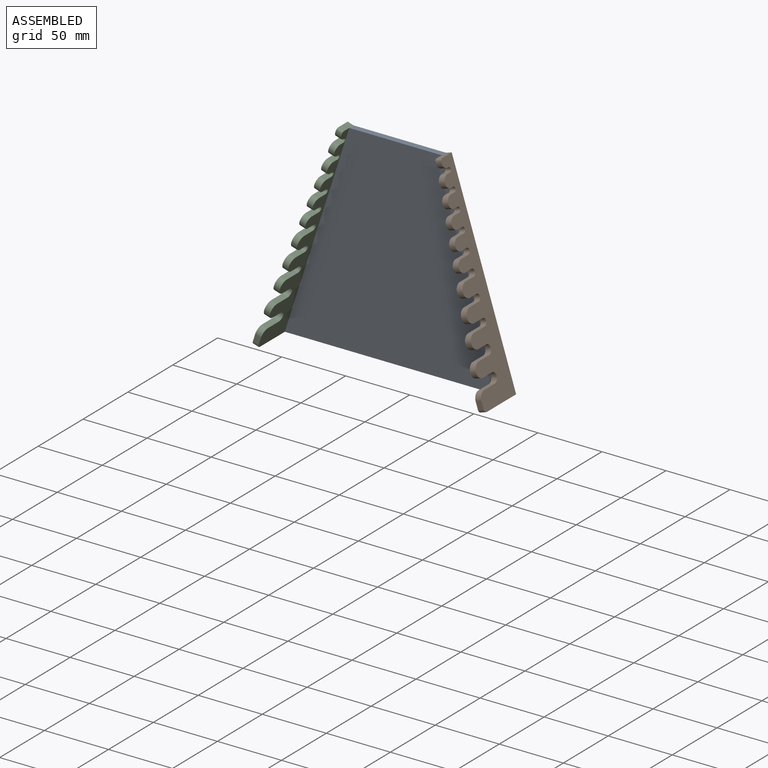
[diagram: assembled view]
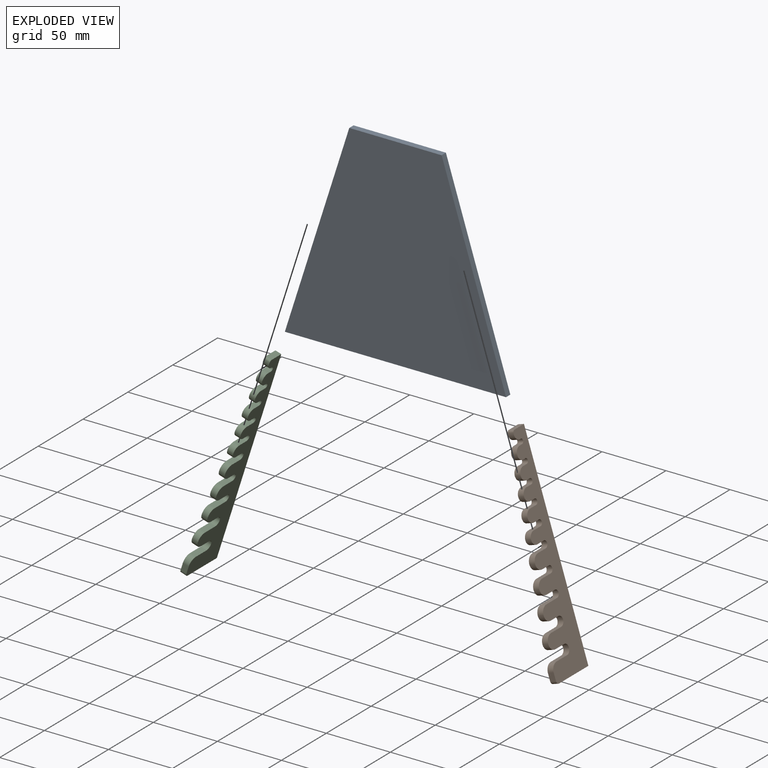
[diagram: exploded view]
GUIDED TOUR — MATED ASSEMBLY (Onshape document 867da534c3318d1e478ffcb7, AutoMate assembly 867da534c3318d1e478ffcb7_2a25a77cb489d93749399618_07b27a0c460248b350188c8e_default)

This assembly has 3 components, labeled P0..P2 below (a component is one placed occurrence of a part; the same part can appear more than once), held together by 2 mates. A mate is a constraint between two components; its type names the relative motion it leaves free:
  FASTENED — locks the two components together rigidly (no relative motion).
Axis/direction vectors are unit vectors and 'through' points are millimeter coordinates, both in the assembly's world frame.

MATES
  1. FASTENED "Fastened 1": P0 <-> P2, direction (-0.305, 0.000, -0.952) through (-73.37, 70.63, -25.66) mm
  2. FASTENED "Fastened 2": P1 <-> P0, direction (0.305, 0.000, -0.952) through (49.03, 70.63, -25.66) mm

ASSEMBLY ORDER
  1. P0 — the base component [order verified]
  2. P2 [order verified]
  3. P1 [order verified]
Order-tag legend:
  [order verified] — this step's position reverses a verified removal order: the component was checked to insert without passing through the ones already placed.

Of the 3 components, 3 carry the full construction recipe — the FeatureScript program that regenerates the part's solid from scratch; the rest are supplied as boundary geometry only.
Each toured component is shown spotlighted twice — in the assembled view, then in the exploded view, where a leader line traces a displaced component back to its assembled socket (saturated green if recipe-attached, orange if geometry-only; every other component desaturated gray) — followed by its recipe or geometry summary and the mates that hold it.
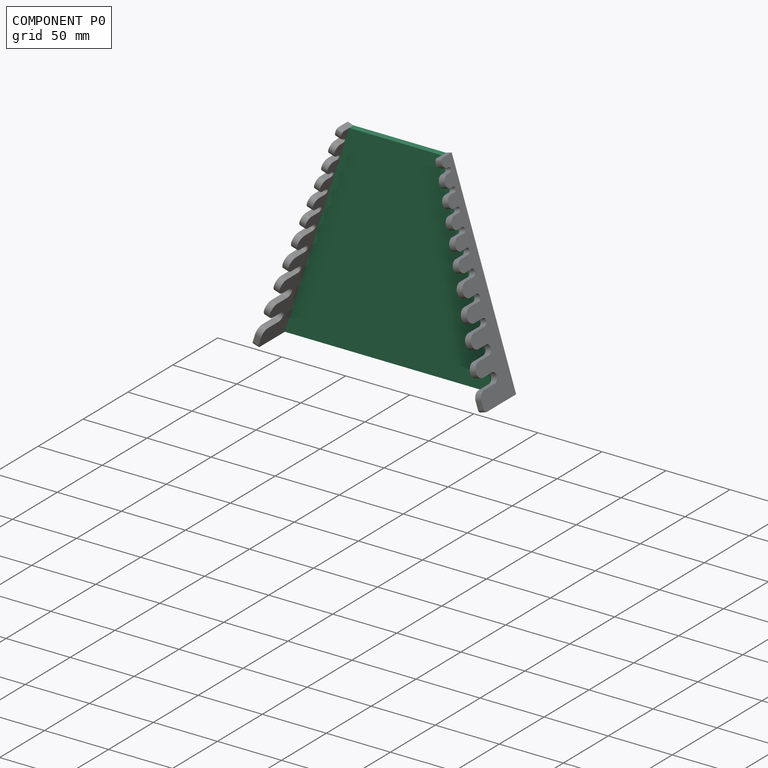
[diagram: component P0 — assembled]
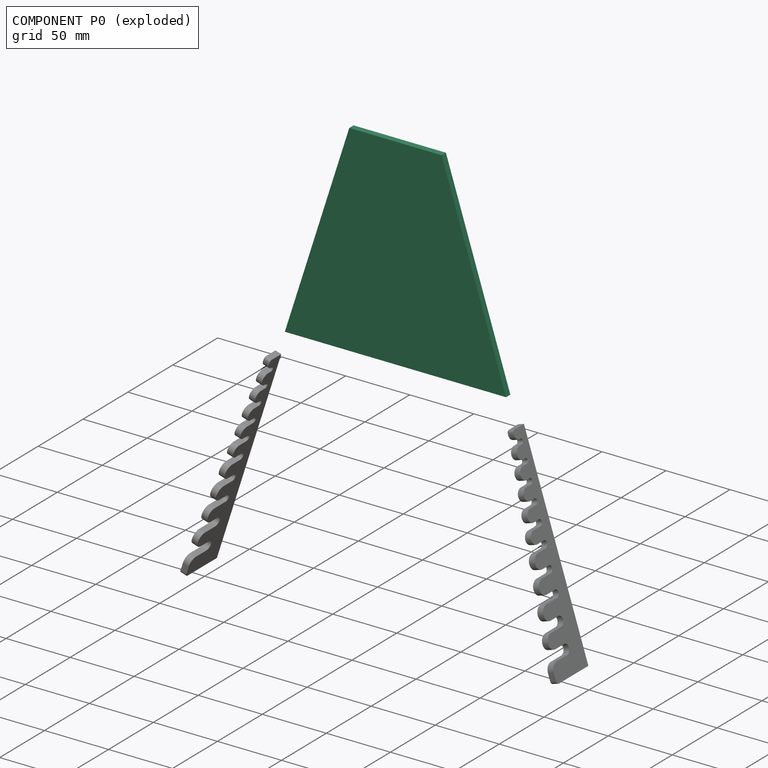
[diagram: component P0 — exploded]
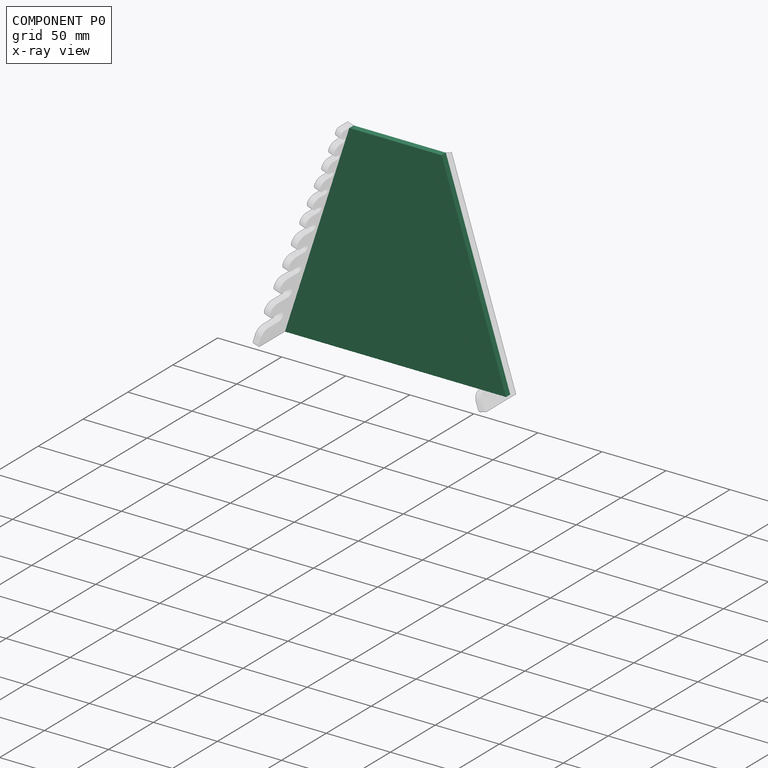
[diagram: component P0 — x-ray view]
COMPONENT P0 — recipe-attached (CADFS 00325314, mesh-verified: the recipe's output STEP matches this component's geometry to below the mesh-comparison resolution (tessellation chordal tolerance ~0.35 mm)).
Held by: FASTENED mate "Fastened 1" to P2; FASTENED mate "Fastened 2" to P1.
Construction recipe (FeatureScript — the CAD program that rebuilds this solid; sketch coordinates are in the units given by the * unit suffixes, e.g. mm):

FeatureScript 1511;
import(path : "onshape/std/geometry.fs", version : "1511.0");
import(path : "onshape/std/common.fs", version : "1511.0");
const mm = millimeter;
const VERTEX = EntityType.VERTEX;
const EDGE = EntityType.EDGE;
const FACE = EntityType.FACE;
const BODY = EntityType.BODY;
function v(x, y){return vector(x, y);}
function OD(order){return orderDisambiguation(order);}
function OSD(set){return originalSetDisambiguation(set);}
function TD(topology){return topologyDisambiguation(topology);}
function TDD(query){return trueDependencyDisambiguation(query);}
function sQuery(a, b, c) {return sketchEntityQuery(a, b, c);}

annotation { "Feature Type Name" : "Feature", "Feature Type Description" : "" }
export const myFeature = defineFeature(function(context is Context, id is Id, definition is map)
    precondition{}
    {
        {
            var Q0;
            Q0=qCreatedBy(makeId("Front.planeOp"),FACE);
            var sketch = newSketch(context, id + "F0", { "sketchPlane" : qUnion([Q0])});
            skLineSegment(sketch, "E0", {"start": v(0, 0) * mm, "end": v(172.68, 0) * mm});
            skLineSegment(sketch, "E1", {"start": v(172.68, 0) * mm, "end": v(122.4, 157.26) * mm});
            skLineSegment(sketch, "E2", {"start": v(122.4, 157.26) * mm, "end": v(50.28, 157.26) * mm});
            skLineSegment(sketch, "E3", {"start": v(50.28, 157.26) * mm, "end": v(0, 0) * mm});
            skLineSegment(sketch, "E4", {"start": v(86.34, 0) * mm, "end": v(86.34, 157.26) * mm, "construction": true});
            skLineSegment(sketch, "E5", {"start": v(5.38, 16.81) * mm, "end": v(167.3, 16.81) * mm, "construction": true});
            skLineSegment(sketch, "E6", {"start": v(41.89, 131) * mm, "end": v(130.79, 131) * mm, "construction": true});
            skSolve(sketch);
        }
        {
            var Q0;
            Q0 = qSketchRegion(id + "F0", true);
            extrude(context, id + "F1", {"entities" : qUnion([Q0]), "depth" : 4.76 * mm});
        }
    });
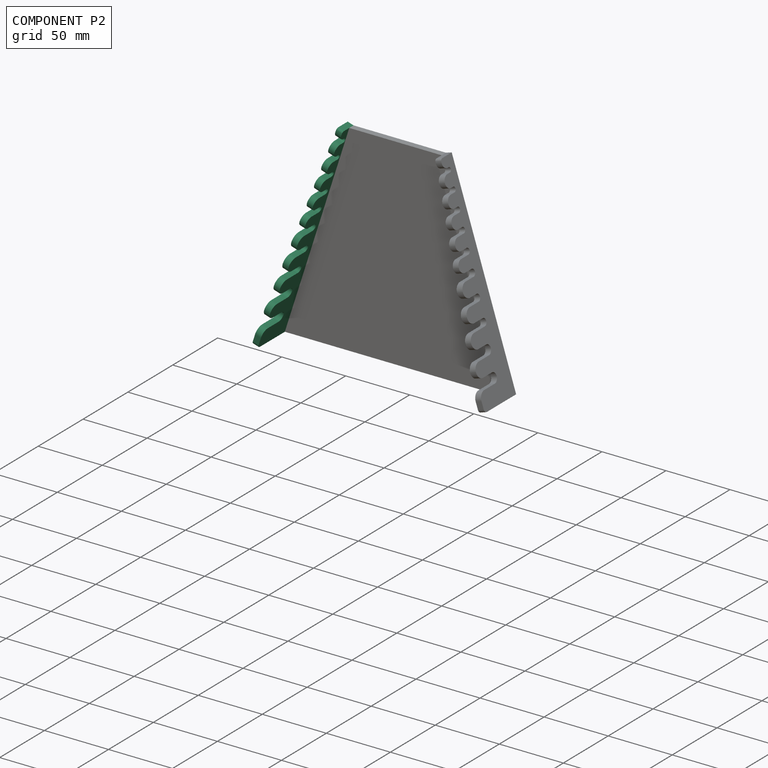
[diagram: component P2 — assembled]
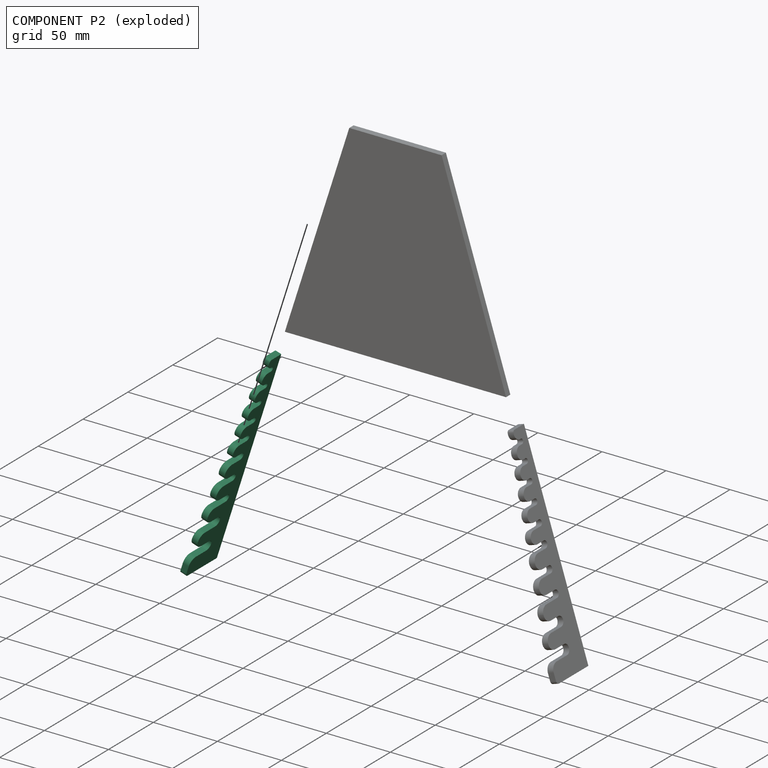
[diagram: component P2 — exploded]
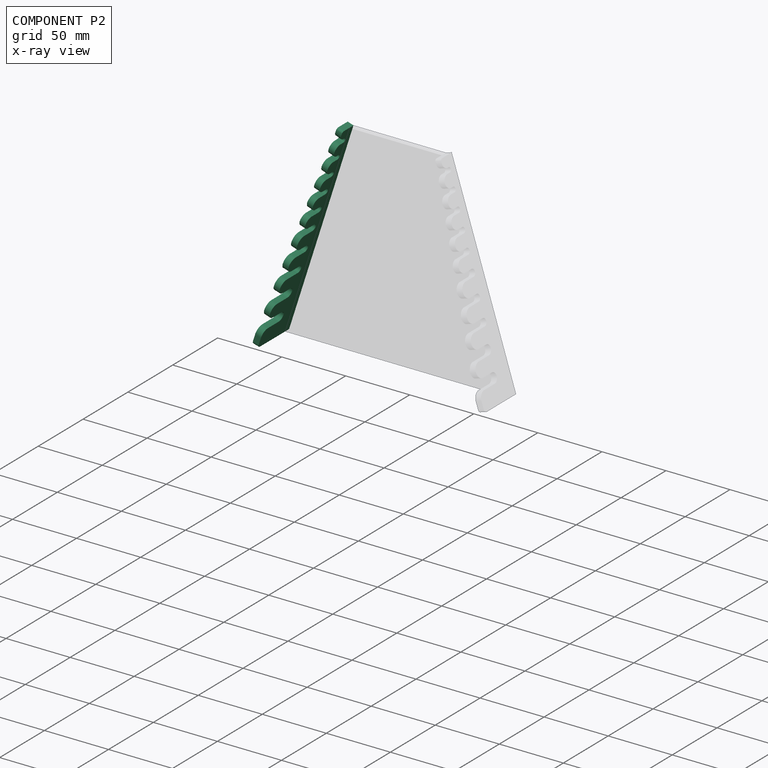
[diagram: component P2 — x-ray view]
COMPONENT P2 — same part as P1 (CADFS 00325313); its construction recipe is shown at P1.
Held by: FASTENED mate "Fastened 1" to P0.
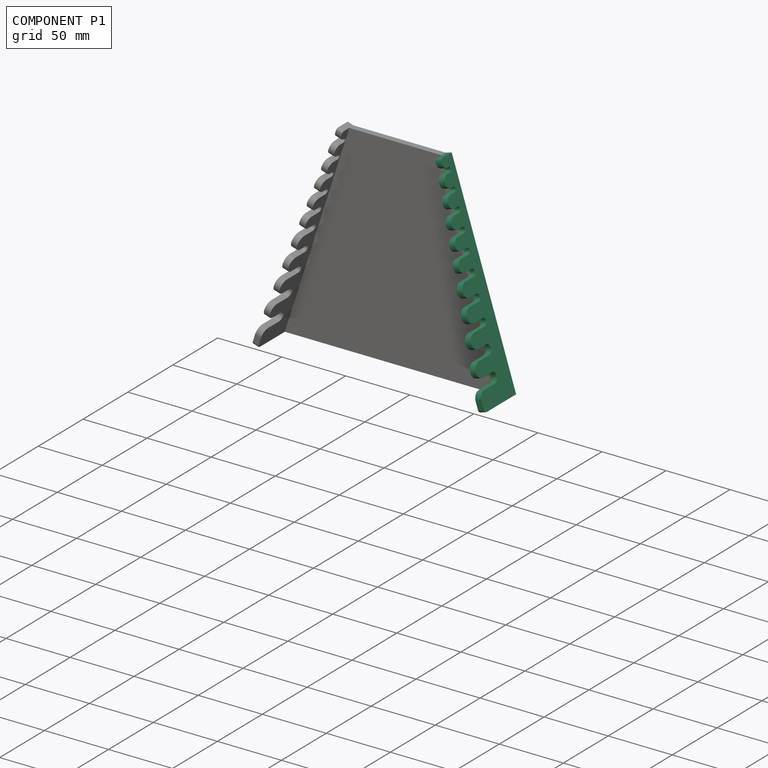
[diagram: component P1 — assembled]
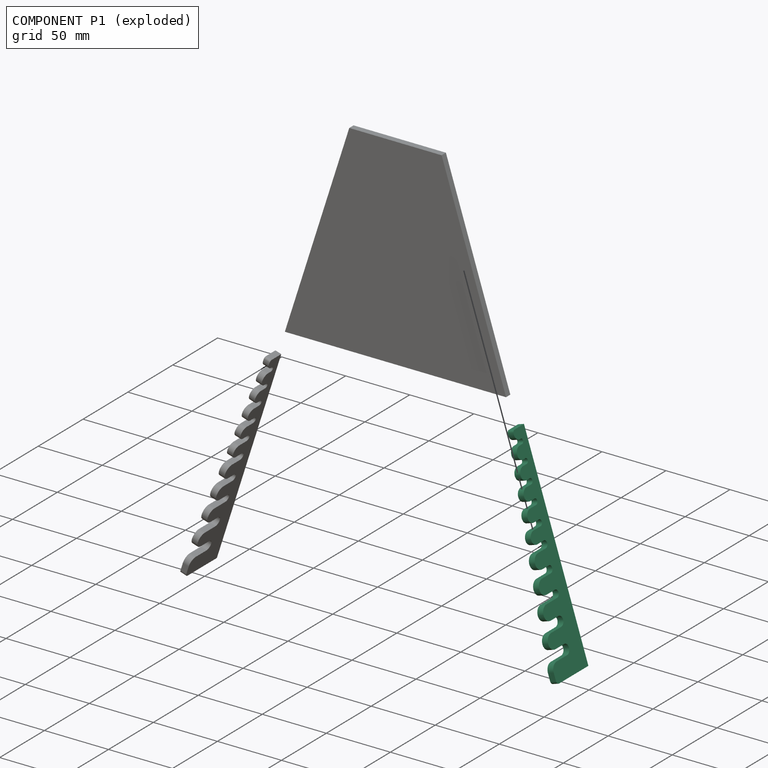
[diagram: component P1 — exploded]
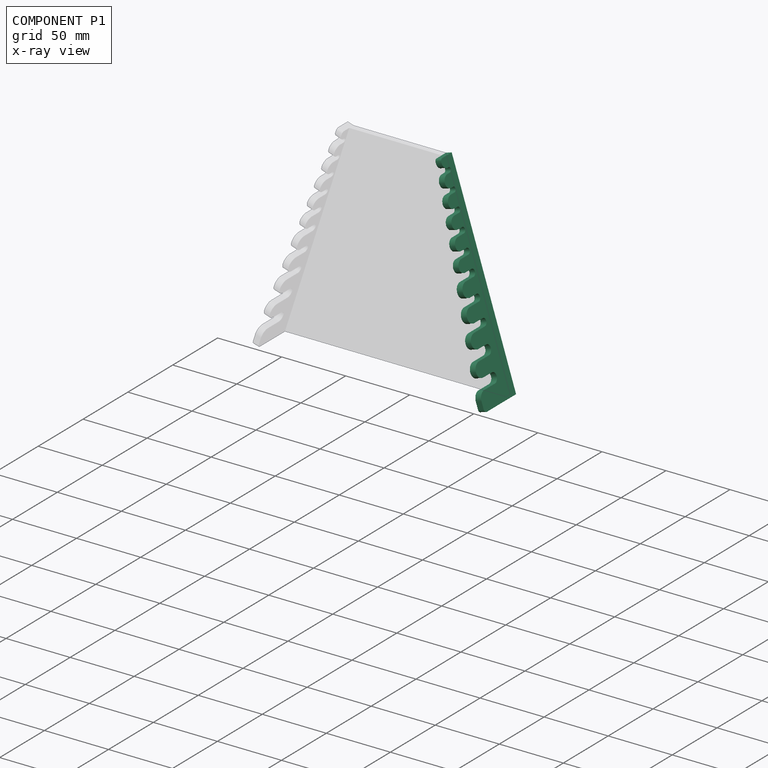
[diagram: component P1 — x-ray view]
COMPONENT P1 — recipe-attached (CADFS 00325313, mesh-verified: the recipe's output STEP matches this component's geometry to below the mesh-comparison resolution (tessellation chordal tolerance ~0.253 mm)).
Held by: FASTENED mate "Fastened 2" to P0.
Construction recipe (FeatureScript — the CAD program that rebuilds this solid; sketch coordinates are in the units given by the * unit suffixes, e.g. mm):

FeatureScript 1511;
import(path : "onshape/std/geometry.fs", version : "1511.0");
import(path : "onshape/std/common.fs", version : "1511.0");
const mm = millimeter;
const VERTEX = EntityType.VERTEX;
const EDGE = EntityType.EDGE;
const FACE = EntityType.FACE;
const BODY = EntityType.BODY;
function v(x, y){return vector(x, y);}
function OD(order){return orderDisambiguation(order);}
function OSD(set){return originalSetDisambiguation(set);}
function TD(topology){return topologyDisambiguation(topology);}
function TDD(query){return trueDependencyDisambiguation(query);}
function sQuery(a, b, c) {return sketchEntityQuery(a, b, c);}

annotation { "Feature Type Name" : "Feature", "Feature Type Description" : "" }
export const myFeature = defineFeature(function(context is Context, id is Id, definition is map)
    precondition{}
    {
        {
            var Q0;
            Q0=qCreatedBy(makeId("Front.planeOp"),FACE);
            var sketch = newSketch(context, id + "F0", { "sketchPlane" : qUnion([Q0])});
            skLineSegment(sketch, "E0", {"start": v(0, 0) * mm, "end": v(0, 32.51) * mm});
            skLineSegment(sketch, "E1", {"start": v(2.54, 35.05) * mm, "end": v(8.29, 35.05) * mm});
            skLineSegment(sketch, "E2", {"start": v(27.85, 32.93) * mm, "end": v(27.85, 32.93) * mm});
            skLineSegment(sketch, "E3", {"start": v(165.1, 10.57) * mm, "end": v(165.1, 0) * mm});
            skLineSegment(sketch, "E4", {"start": v(165.1, 0) * mm, "end": v(0, 0) * mm});
            skLineSegment(sketch, "E5", {"start": v(13.84, 29.5) * mm, "end": v(13.84, 17.78) * mm});
            skLineSegment(sketch, "E6", {"start": v(17.65, 13.97) * mm, "end": v(17.65, 13.97) * mm});
            skLineSegment(sketch, "E7", {"start": v(21.46, 17.78) * mm, "end": v(21.46, 27.43) * mm});
            skLineSegment(sketch, "E8", {"start": v(51.05, 24.63) * mm, "end": v(51.05, 12.7) * mm});
            skLineSegment(sketch, "E9", {"start": v(53.85, 9.9) * mm, "end": v(53.85, 9.9) * mm});
            skLineSegment(sketch, "E10", {"start": v(56.64, 12.7) * mm, "end": v(56.64, 22.1) * mm});
            skLineSegment(sketch, "E11.trimOffspring", {"start": v(63.03, 27.59) * mm, "end": v(63.03, 27.59) * mm});
            skLineSegment(sketch, "E12", {"start": v(84.2, 19.6) * mm, "end": v(84.2, 10.8) * mm});
            skLineSegment(sketch, "E13", {"start": v(86.87, 8.13) * mm, "end": v(86.87, 8.13) * mm});
            skLineSegment(sketch, "E14", {"start": v(89.53, 10.8) * mm, "end": v(89.53, 18.03) * mm});
            skLineSegment(sketch, "E15", {"start": v(113.16, 15.89) * mm, "end": v(113.16, 9.02) * mm});
            skLineSegment(sketch, "E16", {"start": v(115.32, 6.86) * mm, "end": v(115.32, 6.86) * mm});
            skLineSegment(sketch, "E17", {"start": v(117.47, 9.02) * mm, "end": v(117.47, 13.79) * mm});
            skLineSegment(sketch, "E18", {"start": v(140.59, 11.72) * mm, "end": v(140.59, 7.5) * mm});
            skLineSegment(sketch, "E19", {"start": v(142.5, 5.59) * mm, "end": v(142.5, 5.59) * mm});
            skLineSegment(sketch, "E20", {"start": v(144.4, 7.5) * mm, "end": v(144.4, 9.7) * mm});
            skLineSegment(sketch, "E21", {"start": v(153.92, 9.7) * mm, "end": v(153.92, 6.86) * mm});
            skLineSegment(sketch, "E22", {"start": v(155.7, 5.08) * mm, "end": v(155.7, 5.08) * mm});
            skLineSegment(sketch, "E23", {"start": v(157.48, 6.86) * mm, "end": v(157.48, 7.72) * mm});
            skLineSegment(sketch, "E24.trimOffspring", {"start": v(149.88, 14.4) * mm, "end": v(149.88, 14.4) * mm});
            skLineSegment(sketch, "E25.trimOffspring", {"start": v(162.96, 12.42) * mm, "end": v(163.59, 12.33) * mm});
            skLineSegment(sketch, "E26", {"start": v(95.01, 22.73) * mm, "end": v(95.01, 22.73) * mm});
            skLineSegment(sketch, "E27", {"start": v(122.95, 18.5) * mm, "end": v(122.95, 18.5) * mm});
            skLineSegment(sketch, "E28", {"start": v(32.58, 27.43) * mm, "end": v(32.58, 16.13) * mm});
            skLineSegment(sketch, "E29", {"start": v(36.26, 12.45) * mm, "end": v(36.26, 12.45) * mm});
            skLineSegment(sketch, "E30", {"start": v(39.94, 16.13) * mm, "end": v(39.94, 24.63) * mm});
            skLineSegment(sketch, "E31.trimOffspring", {"start": v(46.33, 30.12) * mm, "end": v(46.33, 30.12) * mm});
            skLineSegment(sketch, "E32", {"start": v(67.75, 22.1) * mm, "end": v(67.75, 12.32) * mm});
            skLineSegment(sketch, "E33", {"start": v(70.42, 9.65) * mm, "end": v(70.42, 9.65) * mm});
            skLineSegment(sketch, "E34", {"start": v(73.09, 12.32) * mm, "end": v(73.09, 19.6) * mm});
            skLineSegment(sketch, "E35.trimOffspring", {"start": v(79.48, 25.1) * mm, "end": v(79.48, 25.1) * mm});
            skLineSegment(sketch, "E36", {"start": v(99.06, 18.03) * mm, "end": v(99.06, 10.16) * mm});
            skLineSegment(sketch, "E37", {"start": v(101.35, 7.87) * mm, "end": v(101.35, 7.87) * mm});
            skLineSegment(sketch, "E38", {"start": v(103.63, 10.16) * mm, "end": v(103.63, 15.89) * mm});
            skLineSegment(sketch, "E39.trimOffspring", {"start": v(109.1, 20.6) * mm, "end": v(109.1, 20.6) * mm});
            skLineSegment(sketch, "E40", {"start": v(127, 13.79) * mm, "end": v(127, 8.38) * mm});
            skLineSegment(sketch, "E41", {"start": v(129.03, 6.35) * mm, "end": v(129.03, 6.35) * mm});
            skLineSegment(sketch, "E42", {"start": v(131.06, 8.38) * mm, "end": v(131.06, 11.72) * mm});
            skLineSegment(sketch, "E43.trimOffspring", {"start": v(136.54, 16.43) * mm, "end": v(136.54, 16.43) * mm});
            skPoint(sketch, "E44.visualSharp", {"position": v(13.84, 13.97) * mm});
            skArc(sketch, "E44.filletArc", {"start": v(13.84, 17.78) * mm, "mid": v(14.96, 15.09) * mm, "end": v(17.65, 13.97) * mm});
            skPoint(sketch, "E45.visualSharp", {"position": v(21.46, 13.97) * mm});
            skArc(sketch, "E45.filletArc", {"start": v(17.65, 13.97) * mm, "mid": v(20.35, 15.09) * mm, "end": v(21.46, 17.78) * mm});
            skPoint(sketch, "E46.visualSharp", {"position": v(32.58, 12.45) * mm});
            skArc(sketch, "E46.filletArc", {"start": v(32.58, 16.13) * mm, "mid": v(33.65, 13.52) * mm, "end": v(36.26, 12.45) * mm});
            skPoint(sketch, "E47.visualSharp", {"position": v(39.94, 12.45) * mm});
            skArc(sketch, "E47.filletArc", {"start": v(36.26, 12.45) * mm, "mid": v(38.86, 13.52) * mm, "end": v(39.94, 16.13) * mm});
            skPoint(sketch, "E48.visualSharp", {"position": v(51.05, 9.9) * mm});
            skArc(sketch, "E48.filletArc", {"start": v(51.05, 12.7) * mm, "mid": v(51.87, 10.72) * mm, "end": v(53.85, 9.9) * mm});
            skPoint(sketch, "E49.visualSharp", {"position": v(56.64, 9.9) * mm});
            skArc(sketch, "E49.filletArc", {"start": v(53.85, 9.9) * mm, "mid": v(55.82, 10.72) * mm, "end": v(56.64, 12.7) * mm});
            skPoint(sketch, "E50.visualSharp", {"position": v(67.75, 9.65) * mm});
            skArc(sketch, "E50.filletArc", {"start": v(67.75, 12.32) * mm, "mid": v(68.54, 10.43) * mm, "end": v(70.42, 9.65) * mm});
            skPoint(sketch, "E51.visualSharp", {"position": v(73.09, 9.65) * mm});
            skArc(sketch, "E51.filletArc", {"start": v(70.42, 9.65) * mm, "mid": v(72.3, 10.43) * mm, "end": v(73.09, 12.32) * mm});
            skPoint(sketch, "E52.visualSharp", {"position": v(84.2, 8.13) * mm});
            skArc(sketch, "E52.filletArc", {"start": v(84.2, 10.8) * mm, "mid": v(84.98, 8.9) * mm, "end": v(86.87, 8.13) * mm});
            skPoint(sketch, "E53.visualSharp", {"position": v(89.53, 8.13) * mm});
            skArc(sketch, "E53.filletArc", {"start": v(86.87, 8.13) * mm, "mid": v(88.75, 8.9) * mm, "end": v(89.53, 10.8) * mm});
            skPoint(sketch, "E54.visualSharp", {"position": v(99.06, 7.87) * mm});
            skArc(sketch, "E54.filletArc", {"start": v(99.06, 10.16) * mm, "mid": v(99.73, 8.54) * mm, "end": v(101.35, 7.87) * mm});
            skPoint(sketch, "E55.visualSharp", {"position": v(103.63, 7.87) * mm});
            skArc(sketch, "E55.filletArc", {"start": v(101.35, 7.87) * mm, "mid": v(102.96, 8.54) * mm, "end": v(103.63, 10.16) * mm});
            skPoint(sketch, "E56.visualSharp", {"position": v(113.16, 6.86) * mm});
            skArc(sketch, "E56.filletArc", {"start": v(113.16, 9.02) * mm, "mid": v(113.79, 7.5) * mm, "end": v(115.32, 6.86) * mm});
            skPoint(sketch, "E57.visualSharp", {"position": v(117.48, 6.86) * mm});
            skArc(sketch, "E57.filletArc", {"start": v(115.32, 6.86) * mm, "mid": v(116.84, 7.5) * mm, "end": v(117.47, 9.02) * mm});
            skPoint(sketch, "E58.visualSharp", {"position": v(127, 6.35) * mm});
            skArc(sketch, "E58.filletArc", {"start": v(127, 8.38) * mm, "mid": v(127.6, 6.95) * mm, "end": v(129.03, 6.35) * mm});
            skPoint(sketch, "E59.visualSharp", {"position": v(131.06, 6.35) * mm});
            skArc(sketch, "E59.filletArc", {"start": v(129.03, 6.35) * mm, "mid": v(130.47, 6.95) * mm, "end": v(131.06, 8.38) * mm});
            skPoint(sketch, "E60.visualSharp", {"position": v(140.59, 5.59) * mm});
            skArc(sketch, "E60.filletArc", {"start": v(140.59, 7.5) * mm, "mid": v(141.15, 6.15) * mm, "end": v(142.5, 5.59) * mm});
            skPoint(sketch, "E61.visualSharp", {"position": v(144.4, 5.59) * mm});
            skArc(sketch, "E61.filletArc", {"start": v(142.5, 5.59) * mm, "mid": v(143.84, 6.15) * mm, "end": v(144.4, 7.5) * mm});
            skPoint(sketch, "E62.visualSharp", {"position": v(153.92, 5.08) * mm});
            skArc(sketch, "E62.filletArc", {"start": v(153.92, 6.86) * mm, "mid": v(154.44, 5.6) * mm, "end": v(155.7, 5.08) * mm});
            skPoint(sketch, "E63.visualSharp", {"position": v(157.48, 5.08) * mm});
            skArc(sketch, "E63.filletArc", {"start": v(155.7, 5.08) * mm, "mid": v(156.96, 5.6) * mm, "end": v(157.48, 6.86) * mm});
            skPoint(sketch, "E64.visualSharp", {"position": v(21.46, 33.9) * mm});
            skArc(sketch, "E64.filletArc", {"start": v(27.85, 32.93) * mm, "mid": v(23.4, 31.65) * mm, "end": v(21.46, 27.43) * mm});
            skPoint(sketch, "E65.visualSharp", {"position": v(32.58, 32.2) * mm});
            skArc(sketch, "E65.filletArc", {"start": v(32.58, 27.43) * mm, "mid": v(31.23, 31.05) * mm, "end": v(27.85, 32.93) * mm});
            skPoint(sketch, "E66.visualSharp", {"position": v(39.94, 31.1) * mm});
            skArc(sketch, "E66.filletArc", {"start": v(46.33, 30.12) * mm, "mid": v(41.88, 28.84) * mm, "end": v(39.94, 24.63) * mm});
            skPoint(sketch, "E67.visualSharp", {"position": v(51.05, 29.4) * mm});
            skArc(sketch, "E67.filletArc", {"start": v(51.05, 24.63) * mm, "mid": v(49.71, 28.25) * mm, "end": v(46.33, 30.12) * mm});
            skPoint(sketch, "E68.visualSharp", {"position": v(67.75, 26.87) * mm});
            skArc(sketch, "E68.filletArc", {"start": v(67.75, 22.1) * mm, "mid": v(66.41, 25.72) * mm, "end": v(63.03, 27.59) * mm});
            skPoint(sketch, "E69.visualSharp", {"position": v(56.64, 28.56) * mm});
            skArc(sketch, "E69.filletArc", {"start": v(63.03, 27.59) * mm, "mid": v(58.58, 26.3) * mm, "end": v(56.64, 22.1) * mm});
            skPoint(sketch, "E70.visualSharp", {"position": v(73.09, 26.06) * mm});
            skArc(sketch, "E70.filletArc", {"start": v(79.48, 25.1) * mm, "mid": v(75.02, 23.81) * mm, "end": v(73.09, 19.6) * mm});
            skPoint(sketch, "E71.visualSharp", {"position": v(84.2, 24.38) * mm});
            skArc(sketch, "E71.filletArc", {"start": v(84.2, 19.6) * mm, "mid": v(82.86, 23.22) * mm, "end": v(79.48, 25.1) * mm});
            skPoint(sketch, "E72.visualSharp", {"position": v(89.53, 23.57) * mm});
            skArc(sketch, "E72.filletArc", {"start": v(95.01, 22.73) * mm, "mid": v(91.2, 21.64) * mm, "end": v(89.53, 18.03) * mm});
            skPoint(sketch, "E73.visualSharp", {"position": v(99.06, 22.12) * mm});
            skArc(sketch, "E73.filletArc", {"start": v(99.06, 18.03) * mm, "mid": v(97.9, 21.13) * mm, "end": v(95.01, 22.73) * mm});
            skPoint(sketch, "E74.visualSharp", {"position": v(103.63, 21.43) * mm});
            skArc(sketch, "E74.filletArc", {"start": v(109.1, 20.6) * mm, "mid": v(105.29, 19.5) * mm, "end": v(103.63, 15.89) * mm});
            skPoint(sketch, "E75.visualSharp", {"position": v(113.16, 19.98) * mm});
            skArc(sketch, "E75.filletArc", {"start": v(113.16, 15.89) * mm, "mid": v(112, 19) * mm, "end": v(109.1, 20.6) * mm});
            skPoint(sketch, "E76.visualSharp", {"position": v(117.47, 19.33) * mm});
            skArc(sketch, "E76.filletArc", {"start": v(122.95, 18.5) * mm, "mid": v(119.13, 17.4) * mm, "end": v(117.47, 13.79) * mm});
            skPoint(sketch, "E77.visualSharp", {"position": v(127, 17.88) * mm});
            skArc(sketch, "E77.filletArc", {"start": v(127, 13.79) * mm, "mid": v(125.85, 16.9) * mm, "end": v(122.95, 18.5) * mm});
            skPoint(sketch, "E78.visualSharp", {"position": v(131.06, 17.26) * mm});
            skArc(sketch, "E78.filletArc", {"start": v(136.54, 16.43) * mm, "mid": v(132.72, 15.34) * mm, "end": v(131.06, 11.72) * mm});
            skPoint(sketch, "E79.visualSharp", {"position": v(140.59, 15.82) * mm});
            skArc(sketch, "E79.filletArc", {"start": v(140.59, 11.72) * mm, "mid": v(139.44, 14.83) * mm, "end": v(136.54, 16.43) * mm});
            skPoint(sketch, "E80.visualSharp", {"position": v(144.4, 15.24) * mm});
            skArc(sketch, "E80.filletArc", {"start": v(149.88, 14.4) * mm, "mid": v(146.06, 13.31) * mm, "end": v(144.4, 9.7) * mm});
            skPoint(sketch, "E81.visualSharp", {"position": v(153.92, 13.8) * mm});
            skArc(sketch, "E81.filletArc", {"start": v(153.92, 9.7) * mm, "mid": v(152.77, 12.8) * mm, "end": v(149.88, 14.4) * mm});
            skPoint(sketch, "E82.visualSharp", {"position": v(13.84, 35.05) * mm});
            skArc(sketch, "E82.filletArc", {"start": v(13.84, 29.5) * mm, "mid": v(12.22, 33.42) * mm, "end": v(8.29, 35.05) * mm});
            skPoint(sketch, "E83.visualSharp", {"position": v(157.48, 13.25) * mm});
            skArc(sketch, "E83.filletArc", {"start": v(162.96, 12.42) * mm, "mid": v(159.14, 11.33) * mm, "end": v(157.48, 7.72) * mm});
            skPoint(sketch, "E84.visualSharp", {"position": v(165.1, 12.1) * mm});
            skArc(sketch, "E84.filletArc", {"start": v(165.1, 10.57) * mm, "mid": v(164.67, 11.73) * mm, "end": v(163.59, 12.33) * mm});
            skPoint(sketch, "E85.visualSharp", {"position": v(0, 35.05) * mm});
            skArc(sketch, "E85.filletArc", {"start": v(2.54, 35.05) * mm, "mid": v(0.74, 34.3) * mm, "end": v(0, 32.51) * mm});
            skSolve(sketch);
        }
        {
            var Q0;
            Q0 = qSketchRegion(id + "F0", true);
            extrude(context, id + "F1", {"entities" : qUnion([Q0]), "depth" : 4.76 * mm});
        }
    });
PROVENANCE & LICENSES
Assembly (occurrences, transforms, mates, per-part STEP geometry): AutoMate dataset, Zenodo record 7776208, CC0.
Construction recipes: CADFS (HuggingFace VladPyatov/CADFS, CC-BY-4.0, layered over the ABC dataset), FeatureScript reconstruction programs keyed by ABC model id.
Join: ABC meta listings map ABC model id -> Onshape documentId; within a shared document, parts are matched by geometric signature (bounding-box dims + volume at 0.1% relative tolerance, exact B-rep face/solid counts).
Verification: 3 of this assembly's 3 components carry a recipe attachment, and every attachment is mesh-verified: the CADFS STEP and the AutoMate member STEP were compared as meshes in their shared local frame (symmetric sampled-point-to-mesh distance); worst across the 3 attachments: below the mesh-comparison resolution (tessellation chordal tolerance ~0.35 mm) on a 234 mm part.
Renders: orthographic iso camera (az 35 / el 25); the floor grid conveys scale (grid pitch printed in each image; no ruler). In the exploded view each component is displaced by its stored offset vector: the offsets alone carry the explosion direction (mate normal/axis signs are not orientation cues and do not encode it), and separation distances are assigned per mate-chain, not proportionally to assembly-order depth.
